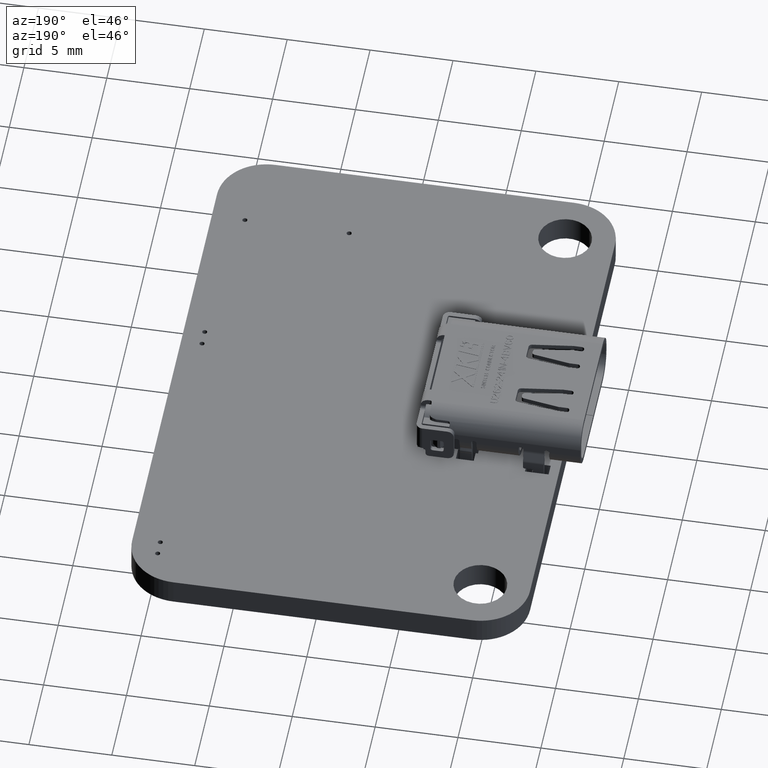
[diagram: clean part render]
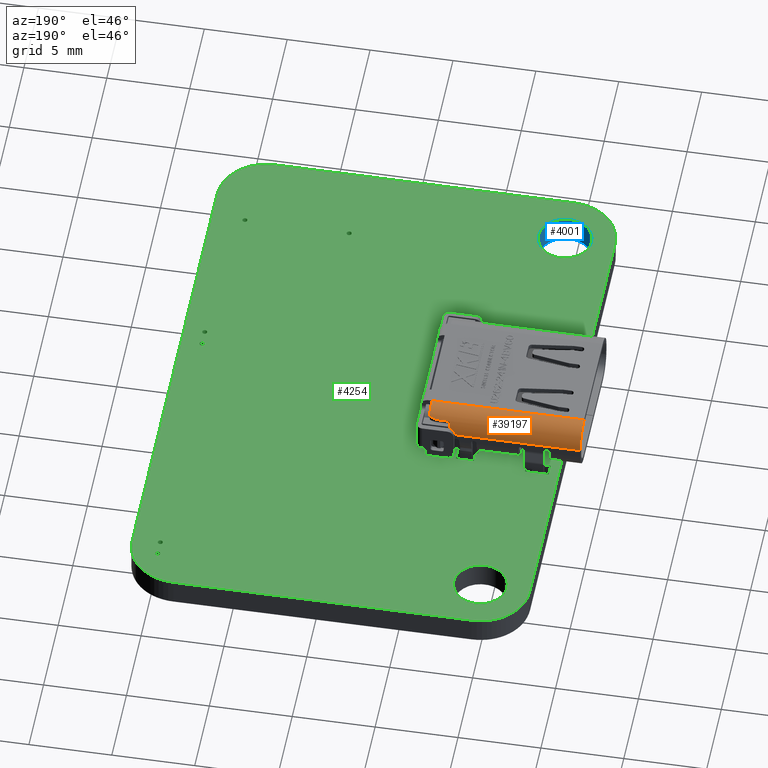
[diagram: same view with three faces highlighted in distinct colors, each labeled with its STEP entity id]
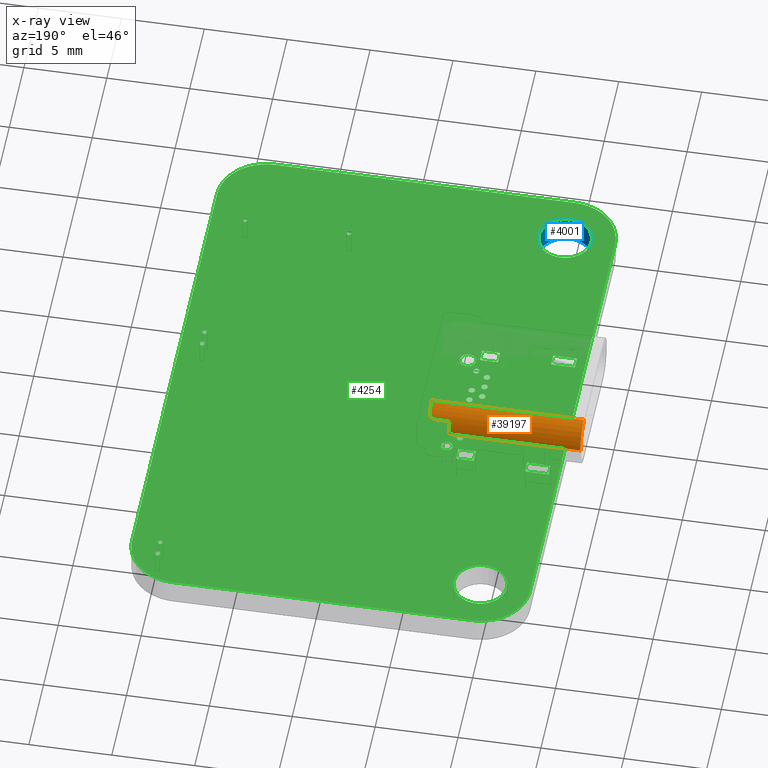
[diagram: x-ray of the same camera — body ghosted, the three highlighted faces saturated]
A machine part, auxiliary view with three faces highlighted in distinct colors.
The next image is the same camera in x-ray (body ghosted, the three faces saturated) — at least one of them is partly hidden behind the body in this view.
Their STEP definitions:

[orange] entity #39197 — the highlighted cylindrical surface (edge-blend (fillet) strip) has radius 1.3 mm, axis along (1, -0, 0).
#35990 = VERTEX_POINT('',#35991);
#35991 = CARTESIAN_POINT('',(-4.470000174,0.279999960187,-1.649999713284
    ));
#35997 = EDGE_CURVE('',#35998,#35990,#36000,.T.);
#35998 = VERTEX_POINT('',#35999);
#35999 = CARTESIAN_POINT('',(-4.470000174,0.279999960544,6.26));
#36000 = LINE('',#36001,#36002);
#36001 = CARTESIAN_POINT('',(-4.470000174,0.279999960544,6.26));
#36002 = VECTOR('',#36003,1.);
#36003 = DIRECTION('',(0.E+000,-4.521665549039E-011,-1.));
#36302 = VERTEX_POINT('',#36303);
#36303 = CARTESIAN_POINT('',(-4.323264403374,0.879984619247,
    -1.649999713761));
#38810 = EDGE_CURVE('',#35998,#38811,#38813,.T.);
#38811 = VERTEX_POINT('',#38812);
#38812 = CARTESIAN_POINT('',(-3.174839038169,1.579990932433,6.26));
#38813 = CIRCLE('',#38814,1.299999978);
#38814 = AXIS2_PLACEMENT_3D('',#38815,#38816,#38817);
#38815 = CARTESIAN_POINT('',(-3.170000196,0.27999996,6.26));
#38816 = DIRECTION('',(0.E+000,0.E+000,-1.));
#38817 = DIRECTION('',(-1.,1.162615707158E-009,0.E+000));
#39197 = ADVANCED_FACE('',(#39198),#39305,.T.);
#39198 = FACE_BOUND('',#39199,.T.);
#39199 = EDGE_LOOP('',(#39200,#39201,#39202,#39210,#39223,#39232,#39245,
    #39256,#39265,#39273,#39291,#39298));
#39200 = ORIENTED_EDGE('',*,*,#35997,.F.);
#39201 = ORIENTED_EDGE('',*,*,#38810,.T.);
#39202 = ORIENTED_EDGE('',*,*,#39203,.F.);
#39203 = EDGE_CURVE('',#39204,#38811,#39206,.T.);
#39204 = VERTEX_POINT('',#39205);
#39205 = CARTESIAN_POINT('',(-3.174994055083,1.579995759134,
    -3.00940348062));
#39206 = LINE('',#39207,#39208);
#39207 = CARTESIAN_POINT('',(-3.174994055083,1.579995759134,
    -3.00940348062));
#39208 = VECTOR('',#39209,1.);
#39209 = DIRECTION('',(6.281786627129E-006,-6.682635573784E-009,
    0.99999999998));
#39210 = ORIENTED_EDGE('',*,*,#39211,.F.);
#39211 = EDGE_CURVE('',#39212,#39204,#39214,.T.);
#39212 = VERTEX_POINT('',#39213);
#39213 = CARTESIAN_POINT('',(-3.300907609936,1.573392086069,
    -2.91000003164));
#39214 = B_SPLINE_CURVE_WITH_KNOTS('',3,(#39215,#39216,#39217,#39218,
    #39219,#39220,#39221,#39222),.UNSPECIFIED.,.F.,.F.,(4,1,1,1,1,4),(
    0.E+000,0.2,0.4,0.6,0.8,1.),.QUASI_UNIFORM_KNOTS.);
#39215 = CARTESIAN_POINT('',(-3.300907615816,1.573392085463,
    -2.910000033879));
#39216 = CARTESIAN_POINT('',(-3.289930381875,1.574503118592,
    -2.910725848789));
#39217 = CARTESIAN_POINT('',(-3.268428693061,1.576406540695,
    -2.912444895567));
#39218 = CARTESIAN_POINT('',(-3.236273870362,1.578425190351,
    -2.925242235423));
#39219 = CARTESIAN_POINT('',(-3.208960510841,1.57950123919,
    -2.946292266327));
#39220 = CARTESIAN_POINT('',(-3.185537846444,1.579948207472,
    -2.975667691055));
#39221 = CARTESIAN_POINT('',(-3.177441296569,1.579986376711,
    -2.997553468333));
#39222 = CARTESIAN_POINT('',(-3.174994055083,1.579995759134,
    -3.00940348062));
#39223 = ORIENTED_EDGE('',*,*,#39224,.T.);
#39224 = EDGE_CURVE('',#39212,#39225,#39227,.T.);
#39225 = VERTEX_POINT('',#39226);
#39226 = CARTESIAN_POINT('',(-3.964496136446,1.308968445135,
    -2.910000033877));
#39227 = CIRCLE('',#39228,1.299999978);
#39228 = AXIS2_PLACEMENT_3D('',#39229,#39230,#39231);
#39229 = CARTESIAN_POINT('',(-3.170000196,0.27999996,-2.91000003164));
#39230 = DIRECTION('',(0.E+000,0.E+000,1.));
#39231 = DIRECTION('',(-0.100698012424,0.99491703689,0.E+000));
#39232 = ORIENTED_EDGE('',*,*,#39233,.F.);
#39233 = EDGE_CURVE('',#39234,#39225,#39236,.T.);
#39234 = VERTEX_POINT('',#39235);
#39235 = CARTESIAN_POINT('',(-4.138316785844,1.147388531501,
    -2.747780408655));
#39236 = B_SPLINE_CURVE_WITH_KNOTS('',3,(#39237,#39238,#39239,#39240,
    #39241,#39242,#39243,#39244),.UNSPECIFIED.,.F.,.F.,(4,1,1,1,1,4),(
    0.E+000,0.2,0.4,0.6,0.8,1.),.QUASI_UNIFORM_KNOTS.);
#39237 = CARTESIAN_POINT('',(-4.138316785844,1.147388531501,
    -2.747780408655));
#39238 = CARTESIAN_POINT('',(-4.132300366375,1.154105012401,
    -2.769690643974));
#39239 = CARTESIAN_POINT('',(-4.118198604014,1.169542062447,
    -2.80887006961));
#39240 = CARTESIAN_POINT('',(-4.091998556932,1.196841449796,
    -2.848999681096));
#39241 = CARTESIAN_POINT('',(-4.055570417733,1.232188153174,
    -2.884638946836));
#39242 = CARTESIAN_POINT('',(-4.016134920028,1.267504802891,
    -2.902738049749));
#39243 = CARTESIAN_POINT('',(-3.982726380281,1.29489235322,
    -2.908886520523));
#39244 = CARTESIAN_POINT('',(-3.964496136446,1.308968445135,
    -2.910000033877));
#39245 = ORIENTED_EDGE('',*,*,#39246,.F.);
#39246 = EDGE_CURVE('',#39247,#39234,#39249,.T.);
#39247 = VERTEX_POINT('',#39248);
#39248 = CARTESIAN_POINT('',(-4.185730255973,1.091352157302,
    -2.552446633238));
#39249 = B_SPLINE_CURVE_WITH_KNOTS('',3,(#39250,#39251,#39252,#39253,
    #39254,#39255),.UNSPECIFIED.,.F.,.F.,(4,1,1,4),(0.E+000,
    0.333333333333,0.666666666667,1.),.UNSPECIFIED.);
#39250 = CARTESIAN_POINT('',(-4.185730093493,1.091352157996,
    -2.552448120154));
#39251 = CARTESIAN_POINT('',(-4.180642841523,1.097720869636,
    -2.574151719937));
#39252 = CARTESIAN_POINT('',(-4.170335143581,1.110379353562,
    -2.617556879594));
#39253 = CARTESIAN_POINT('',(-4.154529776873,1.129058680377,
    -2.682668887627));
#39254 = CARTESIAN_POINT('',(-4.143765632786,1.141305665005,
    -2.726080188379));
#39255 = CARTESIAN_POINT('',(-4.138316785844,1.147388531501,
    -2.747780408655));
#39256 = ORIENTED_EDGE('',*,*,#39257,.F.);
#39257 = EDGE_CURVE('',#39258,#39247,#39260,.T.);
#39258 = VERTEX_POINT('',#39259);
#39259 = CARTESIAN_POINT('',(-4.195602740992,1.0788362151,
    -2.464665755241));
#39260 = B_SPLINE_CURVE_WITH_KNOTS('',3,(#39261,#39262,#39263,#39264),
  .UNSPECIFIED.,.F.,.F.,(4,4),(0.E+000,1.),.PIECEWISE_BEZIER_KNOTS.);
#39261 = CARTESIAN_POINT('',(-4.195602740945,1.078836215188,
    -2.464665755492));
#39262 = CARTESIAN_POINT('',(-4.192312735529,1.083060157085,
    -2.493918731209));
#39263 = CARTESIAN_POINT('',(-4.189021894914,1.087231361636,
    -2.523179133085));
#39264 = CARTESIAN_POINT('',(-4.185730255973,1.091352157302,
    -2.552446633238));
#39265 = ORIENTED_EDGE('',*,*,#39266,.F.);
#39266 = EDGE_CURVE('',#39267,#39258,#39269,.T.);
#39267 = VERTEX_POINT('',#39268);
#39268 = CARTESIAN_POINT('',(-4.19560274099,1.078836215036,
    -1.779999308876));
#39269 = LINE('',#39270,#39271);
#39270 = CARTESIAN_POINT('',(-4.19560274099,1.078836215036,
    -1.779999308876));
#39271 = VECTOR('',#39272,1.);
#39272 = DIRECTION('',(-2.328550306248E-012,9.339205574381E-011,-1.));
#39273 = ORIENTED_EDGE('',*,*,#39274,.F.);
#39274 = EDGE_CURVE('',#39275,#39267,#39277,.T.);
#39275 = VERTEX_POINT('',#39276);
#39276 = CARTESIAN_POINT('',(-4.270466174964,0.972079848412,
    -1.649999710598));
#39277 = B_SPLINE_CURVE_WITH_KNOTS('',3,(#39278,#39279,#39280,#39281,
    #39282,#39283,#39284,#39285,#39286,#39287,#39288,#39289,#39290),
  .UNSPECIFIED.,.F.,.F.,(4,1,1,1,1,1,1,1,1,1,4),(0.E+000,0.1,0.2,0.3,0.4
    ,0.5,0.6,0.7,0.8,0.9,1.),.QUASI_UNIFORM_KNOTS.);
#39278 = CARTESIAN_POINT('',(-4.270466180811,0.97207983913,
    -1.649999713527));
#39279 = CARTESIAN_POINT('',(-4.266510094142,0.978370354292,
    -1.650482781806));
#39280 = CARTESIAN_POINT('',(-4.258752122109,0.990464703726,
    -1.651422904264));
#39281 = CARTESIAN_POINT('',(-4.247869618476,1.006854396364,
    -1.655950647735));
#39282 = CARTESIAN_POINT('',(-4.23739814883,1.022139439979,
    -1.663863127908));
#39283 = CARTESIAN_POINT('',(-4.227101896761,1.036729959723,
    -1.67493476294));
#39284 = CARTESIAN_POINT('',(-4.217128678146,1.050455419844,
    -1.689848866392));
#39285 = CARTESIAN_POINT('',(-4.209072574401,1.061263548608,
    -1.7064150745));
#39286 = CARTESIAN_POINT('',(-4.203038602115,1.069211000635,
    -1.723441929514));
#39287 = CARTESIAN_POINT('',(-4.198992114814,1.07447032913,
    -1.74111273544));
#39288 = CARTESIAN_POINT('',(-4.196846824513,1.077237537055,
    -1.759763338035));
#39289 = CARTESIAN_POINT('',(-4.196019496986,1.078301154181,
    -1.773133376148));
#39290 = CARTESIAN_POINT('',(-4.19560274099,1.078836215036,
    -1.779999308876));
#39291 = ORIENTED_EDGE('',*,*,#39292,.T.);
#39292 = EDGE_CURVE('',#39275,#36302,#39293,.T.);
#39293 = CIRCLE('',#39294,1.299999978);
#39294 = AXIS2_PLACEMENT_3D('',#39295,#39296,#39297);
#39295 = CARTESIAN_POINT('',(-3.170000196,0.27999996,-1.649999710598));
#39296 = DIRECTION('',(0.E+000,0.E+000,1.));
#39297 = DIRECTION('',(-0.846512305836,0.532369153941,0.E+000));
#39298 = ORIENTED_EDGE('',*,*,#39299,.T.);
#39299 = EDGE_CURVE('',#36302,#35990,#39300,.T.);
#39300 = CIRCLE('',#39301,1.299999978);
#39301 = AXIS2_PLACEMENT_3D('',#39302,#39303,#39304);
#39302 = CARTESIAN_POINT('',(-3.170000196,0.27999996,-1.649999710598));
#39303 = DIRECTION('',(0.E+000,0.E+000,1.));
#39304 = DIRECTION('',(-0.887126438948,0.461526468709,0.E+000));
#39305 = CYLINDRICAL_SURFACE('',#39306,1.299999978);
#39306 = AXIS2_PLACEMENT_3D('',#39307,#39308,#39309);
#39307 = CARTESIAN_POINT('',(-3.170000196,0.27999996,6.26));
#39308 = DIRECTION('',(0.E+000,0.E+000,-1.));
#39309 = DIRECTION('',(-1.,0.E+000,0.E+000));

[blue] entity #4001 — the highlighted cylindrical surface (edge-blend (fillet) strip) has radius 1.6 mm, axis along (-0, -0, -1).
#4001 = ADVANCED_FACE('',(#4002),#4037,.F.);
#4002 = FACE_BOUND('',#4003,.F.);
#4003 = EDGE_LOOP('',(#4004,#4015,#4023,#4032));
#4004 = ORIENTED_EDGE('',*,*,#4005,.T.);
#4005 = EDGE_CURVE('',#4006,#4008,#4010,.T.);
#4006 = VERTEX_POINT('',#4007);
#4007 = CARTESIAN_POINT('',(-6.1,-14.5,-0.82));
#4008 = VERTEX_POINT('',#4009);
#4009 = CARTESIAN_POINT('',(-2.9,-14.5,-0.82));
#4010 = CIRCLE('',#4011,1.6);
#4011 = AXIS2_PLACEMENT_3D('',#4012,#4013,#4014);
#4012 = CARTESIAN_POINT('',(-4.5,-14.5,-0.82));
#4013 = DIRECTION('',(0.E+000,0.E+000,1.));
#4014 = DIRECTION('',(1.,0.E+000,-0.E+000));
#4015 = ORIENTED_EDGE('',*,*,#4016,.T.);
#4016 = EDGE_CURVE('',#4008,#4017,#4019,.T.);
#4017 = VERTEX_POINT('',#4018);
#4018 = CARTESIAN_POINT('',(-2.9,-14.5,0.82));
#4019 = LINE('',#4020,#4021);
#4020 = CARTESIAN_POINT('',(-2.9,-14.5,-0.82));
#4021 = VECTOR('',#4022,1.);
#4022 = DIRECTION('',(0.E+000,0.E+000,1.));
#4023 = ORIENTED_EDGE('',*,*,#4024,.F.);
#4024 = EDGE_CURVE('',#4025,#4017,#4027,.T.);
#4025 = VERTEX_POINT('',#4026);
#4026 = CARTESIAN_POINT('',(-6.1,-14.5,0.82));
#4027 = CIRCLE('',#4028,1.6);
#4028 = AXIS2_PLACEMENT_3D('',#4029,#4030,#4031);
#4029 = CARTESIAN_POINT('',(-4.5,-14.5,0.82));
#4030 = DIRECTION('',(0.E+000,0.E+000,1.));
#4031 = DIRECTION('',(1.,0.E+000,-0.E+000));
#4032 = ORIENTED_EDGE('',*,*,#4033,.T.);
#4033 = EDGE_CURVE('',#4025,#4006,#4034,.T.);
#4034 = B_SPLINE_CURVE_WITH_KNOTS('',1,(#4035,#4036),.UNSPECIFIED.,.F.,
  .F.,(2,2),(-1.64,0.E+000),.PIECEWISE_BEZIER_KNOTS.);
#4035 = CARTESIAN_POINT('',(-6.1,-14.5,0.82));
#4036 = CARTESIAN_POINT('',(-6.1,-14.5,-0.82));
#4037 = CYLINDRICAL_SURFACE('',#4038,1.6);
#4038 = AXIS2_PLACEMENT_3D('',#4039,#4040,#4041);
#4039 = CARTESIAN_POINT('',(-4.5,-14.5,-0.82));
#4040 = DIRECTION('',(-0.E+000,-0.E+000,-1.));
#4041 = DIRECTION('',(1.,0.E+000,-0.E+000));

[green] entity #4254 — the highlighted planar face has unit normal (0, 0, -1).
#39 = VERTEX_POINT('',#40);
#40 = CARTESIAN_POINT('',(13.5,17.5,0.82));
#46 = EDGE_CURVE('',#39,#47,#49,.T.);
#47 = VERTEX_POINT('',#48);
#48 = CARTESIAN_POINT('',(-4.5,17.5,0.82));
#49 = LINE('',#50,#51);
#50 = CARTESIAN_POINT('',(13.5,17.5,0.82));
#51 = VECTOR('',#52,1.);
#52 = DIRECTION('',(-1.,0.E+000,0.E+000));
#79 = VERTEX_POINT('',#80);
#80 = CARTESIAN_POINT('',(13.81178,17.48485,0.82));
#86 = EDGE_CURVE('',#79,#39,#87,.T.);
#87 = LINE('',#88,#89);
#88 = CARTESIAN_POINT('',(13.81178,17.48485,0.82));
#89 = VECTOR('',#90,1.);
#90 = DIRECTION('',(-0.998821497493,4.853469012451E-002,0.E+000));
#108 = EDGE_CURVE('',#47,#109,#111,.T.);
#109 = VERTEX_POINT('',#110);
#110 = CARTESIAN_POINT('',(-4.81178,17.48485,0.82));
#111 = LINE('',#112,#113);
#112 = CARTESIAN_POINT('',(-4.5,17.5,0.82));
#113 = VECTOR('',#114,1.);
#114 = DIRECTION('',(-0.998821497493,-4.853469012451E-002,0.E+000));
#141 = VERTEX_POINT('',#142);
#142 = CARTESIAN_POINT('',(14.1134,17.44031,0.82));
#148 = EDGE_CURVE('',#141,#79,#149,.T.);
#149 = LINE('',#150,#151);
#150 = CARTESIAN_POINT('',(14.1134,17.44031,0.82));
#151 = VECTOR('',#152,1.);
#152 = DIRECTION('',(-0.98927203272,0.146085061791,0.E+000));
#170 = EDGE_CURVE('',#109,#171,#173,.T.);
#171 = VERTEX_POINT('',#172);
#172 = CARTESIAN_POINT('',(-5.1134,17.44031,0.82));
#173 = LINE('',#174,#175);
#174 = CARTESIAN_POINT('',(-4.81178,17.48485,0.82));
#175 = VECTOR('',#176,1.);
#176 = DIRECTION('',(-0.98927203272,-0.146085061791,0.E+000));
#203 = VERTEX_POINT('',#204);
#204 = CARTESIAN_POINT('',(14.40349,17.36775,0.82));
#210 = EDGE_CURVE('',#203,#141,#211,.T.);
#211 = LINE('',#212,#213);
#212 = CARTESIAN_POINT('',(14.40349,17.36775,0.82));
#213 = VECTOR('',#214,1.);
#214 = DIRECTION('',(-0.970112985501,0.242653653101,0.E+000));
#232 = EDGE_CURVE('',#171,#233,#235,.T.);
#233 = VERTEX_POINT('',#234);
#234 = CARTESIAN_POINT('',(-5.40349,17.36775,0.82));
#235 = LINE('',#236,#237);
#236 = CARTESIAN_POINT('',(-5.1134,17.44031,0.82));
#237 = VECTOR('',#238,1.);
#238 = DIRECTION('',(-0.970112985501,-0.242653653101,0.E+000));
#265 = VERTEX_POINT('',#266);
#266 = CARTESIAN_POINT('',(14.68066,17.26855,0.82));
#272 = EDGE_CURVE('',#265,#203,#273,.T.);
#273 = LINE('',#274,#275);
#274 = CARTESIAN_POINT('',(14.68066,17.26855,0.82));
#275 = VECTOR('',#276,1.);
#276 = DIRECTION('',(-0.941514982379,0.336971123325,0.E+000));
#294 = EDGE_CURVE('',#233,#295,#297,.T.);
#295 = VERTEX_POINT('',#296);
#296 = CARTESIAN_POINT('',(-5.68066,17.26855,0.82));
#297 = LINE('',#298,#299);
#298 = CARTESIAN_POINT('',(-5.40349,17.36775,0.82));
#299 = VECTOR('',#300,1.);
#300 = DIRECTION('',(-0.941514982379,-0.336971123325,0.E+000));
#327 = VERTEX_POINT('',#328);
#328 = CARTESIAN_POINT('',(14.94356,17.14409,0.82));
#334 = EDGE_CURVE('',#327,#265,#335,.T.);
#335 = LINE('',#336,#337);
#336 = CARTESIAN_POINT('',(14.94356,17.14409,0.82));
#337 = VECTOR('',#338,1.);
#338 = DIRECTION('',(-0.903833020889,0.427885347203,0.E+000));
#356 = EDGE_CURVE('',#295,#357,#359,.T.);
#357 = VERTEX_POINT('',#358);
#358 = CARTESIAN_POINT('',(-5.94356,17.14409,0.82));
#359 = LINE('',#360,#361);
#360 = CARTESIAN_POINT('',(-5.68066,17.26855,0.82));
#361 = VECTOR('',#362,1.);
#362 = DIRECTION('',(-0.903833020889,-0.427885347203,0.E+000));
#389 = VERTEX_POINT('',#390);
#390 = CARTESIAN_POINT('',(15.19079,16.99573,0.82));
#396 = EDGE_CURVE('',#389,#327,#397,.T.);
#397 = LINE('',#398,#399);
#398 = CARTESIAN_POINT('',(15.19079,16.99573,0.82));
#399 = VECTOR('',#400,1.);
#400 = DIRECTION('',(-0.857459261301,0.51455185862,0.E+000));
#418 = EDGE_CURVE('',#357,#419,#421,.T.);
#419 = VERTEX_POINT('',#420);
#420 = CARTESIAN_POINT('',(-6.19079,16.99573,0.82));
#421 = LINE('',#422,#423);
#422 = CARTESIAN_POINT('',(-5.94356,17.14409,0.82));
#423 = VECTOR('',#424,1.);
#424 = DIRECTION('',(-0.857459261301,-0.51455185862,0.E+000));
#451 = VERTEX_POINT('',#452);
#452 = CARTESIAN_POINT('',(15.421,16.82484,0.82));
#458 = EDGE_CURVE('',#451,#389,#459,.T.);
#459 = LINE('',#460,#461);
#460 = CARTESIAN_POINT('',(15.421,16.82484,0.82));
#461 = VECTOR('',#462,1.);
#462 = DIRECTION('',(-0.802949404684,0.59604719068,0.E+000));
#480 = EDGE_CURVE('',#419,#481,#483,.T.);
#481 = VERTEX_POINT('',#482);
#482 = CARTESIAN_POINT('',(-6.421,16.82484,0.82));
#483 = LINE('',#484,#485);
#484 = CARTESIAN_POINT('',(-6.19079,16.99573,0.82));
#485 = VECTOR('',#486,1.);
#486 = DIRECTION('',(-0.802949404684,-0.59604719068,0.E+000));
#513 = VERTEX_POINT('',#514);
#514 = CARTESIAN_POINT('',(15.63281,16.63281,0.82));
#520 = EDGE_CURVE('',#513,#451,#521,.T.);
#521 = LINE('',#522,#523);
#522 = CARTESIAN_POINT('',(15.63281,16.63281,0.82));
#523 = VECTOR('',#524,1.);
#524 = DIRECTION('',(-0.740852597809,0.671667647218,0.E+000));
#542 = EDGE_CURVE('',#481,#543,#545,.T.);
#543 = VERTEX_POINT('',#544);
#544 = CARTESIAN_POINT('',(-6.63281,16.63281,0.82));
#545 = LINE('',#546,#547);
#546 = CARTESIAN_POINT('',(-6.421,16.82484,0.82));
#547 = VECTOR('',#548,1.);
#548 = DIRECTION('',(-0.740852597809,-0.671667647218,0.E+000));
#575 = VERTEX_POINT('',#576);
#576 = CARTESIAN_POINT('',(15.82484,16.42101,0.82));
#582 = EDGE_CURVE('',#575,#513,#583,.T.);
#583 = LINE('',#584,#585);
#584 = CARTESIAN_POINT('',(15.82484,16.42101,0.82));
#585 = VECTOR('',#586,1.);
#586 = DIRECTION('',(-0.671685052386,0.74083681766,0.E+000));
#604 = EDGE_CURVE('',#543,#605,#607,.T.);
#605 = VERTEX_POINT('',#606);
#606 = CARTESIAN_POINT('',(-6.82484,16.42101,0.82));
#607 = LINE('',#608,#609);
#608 = CARTESIAN_POINT('',(-6.63281,16.63281,0.82));
#609 = VECTOR('',#610,1.);
#610 = DIRECTION('',(-0.671685052386,-0.74083681766,0.E+000));
#637 = VERTEX_POINT('',#638);
#638 = CARTESIAN_POINT('',(15.99573,16.1908,0.82));
#644 = EDGE_CURVE('',#637,#575,#645,.T.);
#645 = LINE('',#646,#647);
#646 = CARTESIAN_POINT('',(15.99573,16.1908,0.82));
#647 = VECTOR('',#648,1.);
#648 = DIRECTION('',(-0.59604719068,0.802949404684,0.E+000));
#666 = EDGE_CURVE('',#605,#667,#669,.T.);
#667 = VERTEX_POINT('',#668);
#668 = CARTESIAN_POINT('',(-6.99573,16.1908,0.82));
#669 = LINE('',#670,#671);
#670 = CARTESIAN_POINT('',(-6.82484,16.42101,0.82));
#671 = VECTOR('',#672,1.);
#672 = DIRECTION('',(-0.59604719068,-0.802949404684,0.E+000));
#699 = VERTEX_POINT('',#700);
#700 = CARTESIAN_POINT('',(16.14409,15.94356,0.82));
#706 = EDGE_CURVE('',#699,#637,#707,.T.);
#707 = LINE('',#708,#709);
#708 = CARTESIAN_POINT('',(16.14409,15.94356,0.82));
#709 = VECTOR('',#710,1.);
#710 = DIRECTION('',(-0.514536556754,0.857468443596,0.E+000));
#728 = EDGE_CURVE('',#667,#729,#731,.T.);
#729 = VERTEX_POINT('',#730);
#730 = CARTESIAN_POINT('',(-7.14409,15.94356,0.82));
#731 = LINE('',#732,#733);
#732 = CARTESIAN_POINT('',(-6.99573,16.1908,0.82));
#733 = VECTOR('',#734,1.);
#734 = DIRECTION('',(-0.514536556754,-0.857468443596,0.E+000));
#761 = VERTEX_POINT('',#762);
#762 = CARTESIAN_POINT('',(16.26855,15.68066,0.82));
#768 = EDGE_CURVE('',#761,#699,#769,.T.);
#769 = LINE('',#770,#771);
#770 = CARTESIAN_POINT('',(16.26855,15.68066,0.82));
#771 = VECTOR('',#772,1.);
#772 = DIRECTION('',(-0.427885347203,0.903833020889,0.E+000));
#790 = EDGE_CURVE('',#729,#791,#793,.T.);
#791 = VERTEX_POINT('',#792);
#792 = CARTESIAN_POINT('',(-7.26855,15.68066,0.82));
#793 = LINE('',#794,#795);
#794 = CARTESIAN_POINT('',(-7.14409,15.94356,0.82));
#795 = VECTOR('',#796,1.);
#796 = DIRECTION('',(-0.427885347203,-0.903833020889,0.E+000));
#823 = VERTEX_POINT('',#824);
#824 = CARTESIAN_POINT('',(16.36775,15.40349,0.82));
#830 = EDGE_CURVE('',#823,#761,#831,.T.);
#831 = LINE('',#832,#833);
#832 = CARTESIAN_POINT('',(16.36775,15.40349,0.82));
#833 = VECTOR('',#834,1.);
#834 = DIRECTION('',(-0.336971123325,0.941514982379,0.E+000));
#852 = EDGE_CURVE('',#791,#853,#855,.T.);
#853 = VERTEX_POINT('',#854);
#854 = CARTESIAN_POINT('',(-7.36775,15.40349,0.82));
#855 = LINE('',#856,#857);
#856 = CARTESIAN_POINT('',(-7.26855,15.68066,0.82));
#857 = VECTOR('',#858,1.);
#858 = DIRECTION('',(-0.336971123325,-0.941514982379,0.E+000));
#885 = VERTEX_POINT('',#886);
#886 = CARTESIAN_POINT('',(16.44031,15.1134,0.82));
#892 = EDGE_CURVE('',#885,#823,#893,.T.);
#893 = LINE('',#894,#895);
#894 = CARTESIAN_POINT('',(16.44031,15.1134,0.82));
#895 = VECTOR('',#896,1.);
#896 = DIRECTION('',(-0.242653653101,0.970112985501,0.E+000));
#914 = EDGE_CURVE('',#853,#915,#917,.T.);
#915 = VERTEX_POINT('',#916);
#916 = CARTESIAN_POINT('',(-7.44031,15.1134,0.82));
#917 = LINE('',#918,#919);
#918 = CARTESIAN_POINT('',(-7.36775,15.40349,0.82));
#919 = VECTOR('',#920,1.);
#920 = DIRECTION('',(-0.242653653101,-0.970112985501,0.E+000));
#947 = VERTEX_POINT('',#948);
#948 = CARTESIAN_POINT('',(16.48485,14.81178,0.82));
#954 = EDGE_CURVE('',#947,#885,#955,.T.);
#955 = LINE('',#956,#957);
#956 = CARTESIAN_POINT('',(16.48485,14.81178,0.82));
#957 = VECTOR('',#958,1.);
#958 = DIRECTION('',(-0.146085061791,0.98927203272,0.E+000));
#976 = EDGE_CURVE('',#915,#977,#979,.T.);
#977 = VERTEX_POINT('',#978);
#978 = CARTESIAN_POINT('',(-7.48485,14.81178,0.82));
#979 = LINE('',#980,#981);
#980 = CARTESIAN_POINT('',(-7.44031,15.1134,0.82));
#981 = VECTOR('',#982,1.);
#982 = DIRECTION('',(-0.146085061791,-0.98927203272,0.E+000));
#1009 = VERTEX_POINT('',#1010);
#1010 = CARTESIAN_POINT('',(16.5,14.5,0.82));
#1016 = EDGE_CURVE('',#1009,#947,#1017,.T.);
#1017 = LINE('',#1018,#1019);
#1018 = CARTESIAN_POINT('',(16.5,14.5,0.82));
#1019 = VECTOR('',#1020,1.);
#1020 = DIRECTION('',(-4.853469012451E-002,0.998821497493,0.E+000));
#1038 = EDGE_CURVE('',#977,#1039,#1041,.T.);
#1039 = VERTEX_POINT('',#1040);
#1040 = CARTESIAN_POINT('',(-7.5,14.5,0.82));
#1041 = LINE('',#1042,#1043);
#1042 = CARTESIAN_POINT('',(-7.48485,14.81178,0.82));
#1043 = VECTOR('',#1044,1.);
#1044 = DIRECTION('',(-4.853469012452E-002,-0.998821497493,0.E+000));
#1071 = VERTEX_POINT('',#1072);
#1072 = CARTESIAN_POINT('',(16.5,-14.5,0.82));
#1078 = EDGE_CURVE('',#1071,#1009,#1079,.T.);
#1079 = LINE('',#1080,#1081);
#1080 = CARTESIAN_POINT('',(16.5,-14.5,0.82));
#1081 = VECTOR('',#1082,1.);
#1082 = DIRECTION('',(0.E+000,1.,0.E+000));
#1100 = EDGE_CURVE('',#1039,#1101,#1103,.T.);
#1101 = VERTEX_POINT('',#1102);
#1102 = CARTESIAN_POINT('',(-7.5,-14.5,0.82));
#1103 = LINE('',#1104,#1105);
#1104 = CARTESIAN_POINT('',(-7.5,14.5,0.82));
#1105 = VECTOR('',#1106,1.);
#1106 = DIRECTION('',(0.E+000,-1.,0.E+000));
#1133 = VERTEX_POINT('',#1134);
#1134 = CARTESIAN_POINT('',(16.48485,-14.81178,0.82));
#1140 = EDGE_CURVE('',#1133,#1071,#1141,.T.);
#1141 = LINE('',#1142,#1143);
#1142 = CARTESIAN_POINT('',(16.48485,-14.81178,0.82));
#1143 = VECTOR('',#1144,1.);
#1144 = DIRECTION('',(4.853469012451E-002,0.998821497493,0.E+000));
#1162 = EDGE_CURVE('',#1101,#1163,#1165,.T.);
#1163 = VERTEX_POINT('',#1164);
#1164 = CARTESIAN_POINT('',(-7.48485,-14.81178,0.82));
#1165 = LINE('',#1166,#1167);
#1166 = CARTESIAN_POINT('',(-7.5,-14.5,0.82));
#1167 = VECTOR('',#1168,1.);
#1168 = DIRECTION('',(4.853469012452E-002,-0.998821497493,0.E+000));
#1195 = VERTEX_POINT('',#1196);
#1196 = CARTESIAN_POINT('',(16.44031,-15.1134,0.82));
#1202 = EDGE_CURVE('',#1195,#1133,#1203,.T.);
#1203 = LINE('',#1204,#1205);
#1204 = CARTESIAN_POINT('',(16.44031,-15.1134,0.82));
#1205 = VECTOR('',#1206,1.);
#1206 = DIRECTION('',(0.146085061791,0.98927203272,0.E+000));
#1224 = EDGE_CURVE('',#1163,#1225,#1227,.T.);
#1225 = VERTEX_POINT('',#1226);
#1226 = CARTESIAN_POINT('',(-7.44031,-15.1134,0.82));
#1227 = LINE('',#1228,#1229);
#1228 = CARTESIAN_POINT('',(-7.48485,-14.81178,0.82));
#1229 = VECTOR('',#1230,1.);
#1230 = DIRECTION('',(0.146085061791,-0.98927203272,0.E+000));
#1257 = VERTEX_POINT('',#1258);
#1258 = CARTESIAN_POINT('',(16.36775,-15.40349,0.82));
#1264 = EDGE_CURVE('',#1257,#1195,#1265,.T.);
#1265 = LINE('',#1266,#1267);
#1266 = CARTESIAN_POINT('',(16.36775,-15.40349,0.82));
#1267 = VECTOR('',#1268,1.);
#1268 = DIRECTION('',(0.242653653101,0.970112985501,0.E+000));
#1286 = EDGE_CURVE('',#1225,#1287,#1289,.T.);
#1287 = VERTEX_POINT('',#1288);
#1288 = CARTESIAN_POINT('',(-7.36775,-15.40349,0.82));
#1289 = LINE('',#1290,#1291);
#1290 = CARTESIAN_POINT('',(-7.44031,-15.1134,0.82));
#1291 = VECTOR('',#1292,1.);
#1292 = DIRECTION('',(0.242653653101,-0.970112985501,0.E+000));
#1319 = VERTEX_POINT('',#1320);
#1320 = CARTESIAN_POINT('',(16.26855,-15.68066,0.82));
#1326 = EDGE_CURVE('',#1319,#1257,#1327,.T.);
#1327 = LINE('',#1328,#1329);
#1328 = CARTESIAN_POINT('',(16.26855,-15.68066,0.82));
#1329 = VECTOR('',#1330,1.);
#1330 = DIRECTION('',(0.336971123325,0.941514982379,0.E+000));
#1348 = EDGE_CURVE('',#1287,#1349,#1351,.T.);
#1349 = VERTEX_POINT('',#1350);
#1350 = CARTESIAN_POINT('',(-7.26855,-15.68066,0.82));
#1351 = LINE('',#1352,#1353);
#1352 = CARTESIAN_POINT('',(-7.36775,-15.40349,0.82));
#1353 = VECTOR('',#1354,1.);
#1354 = DIRECTION('',(0.336971123325,-0.941514982379,0.E+000));
#1381 = VERTEX_POINT('',#1382);
#1382 = CARTESIAN_POINT('',(16.14409,-15.94356,0.82));
#1388 = EDGE_CURVE('',#1381,#1319,#1389,.T.);
#1389 = LINE('',#1390,#1391);
#1390 = CARTESIAN_POINT('',(16.14409,-15.94356,0.82));
#1391 = VECTOR('',#1392,1.);
#1392 = DIRECTION('',(0.427885347203,0.903833020889,0.E+000));
#1410 = EDGE_CURVE('',#1349,#1411,#1413,.T.);
#1411 = VERTEX_POINT('',#1412);
#1412 = CARTESIAN_POINT('',(-7.14409,-15.94356,0.82));
#1413 = LINE('',#1414,#1415);
#1414 = CARTESIAN_POINT('',(-7.26855,-15.68066,0.82));
#1415 = VECTOR('',#1416,1.);
#1416 = DIRECTION('',(0.427885347203,-0.903833020889,0.E+000));
#1443 = VERTEX_POINT('',#1444);
#1444 = CARTESIAN_POINT('',(15.99573,-16.1908,0.82));
#1450 = EDGE_CURVE('',#1443,#1381,#1451,.T.);
#1451 = LINE('',#1452,#1453);
#1452 = CARTESIAN_POINT('',(15.99573,-16.1908,0.82));
#1453 = VECTOR('',#1454,1.);
#1454 = DIRECTION('',(0.514536556754,0.857468443596,0.E+000));
#1472 = EDGE_CURVE('',#1411,#1473,#1475,.T.);
#1473 = VERTEX_POINT('',#1474);
#1474 = CARTESIAN_POINT('',(-6.99573,-16.1908,0.82));
#1475 = LINE('',#1476,#1477);
#1476 = CARTESIAN_POINT('',(-7.14409,-15.94356,0.82));
#1477 = VECTOR('',#1478,1.);
#1478 = DIRECTION('',(0.514536556754,-0.857468443596,0.E+000));
#1505 = VERTEX_POINT('',#1506);
#1506 = CARTESIAN_POINT('',(15.82484,-16.42101,0.82));
#1512 = EDGE_CURVE('',#1505,#1443,#1513,.T.);
#1513 = LINE('',#1514,#1515);
#1514 = CARTESIAN_POINT('',(15.82484,-16.42101,0.82));
#1515 = VECTOR('',#1516,1.);
#1516 = DIRECTION('',(0.59604719068,0.802949404684,0.E+000));
#1534 = EDGE_CURVE('',#1473,#1535,#1537,.T.);
#1535 = VERTEX_POINT('',#1536);
#1536 = CARTESIAN_POINT('',(-6.82484,-16.42101,0.82));
#1537 = LINE('',#1538,#1539);
#1538 = CARTESIAN_POINT('',(-6.99573,-16.1908,0.82));
#1539 = VECTOR('',#1540,1.);
#1540 = DIRECTION('',(0.59604719068,-0.802949404684,0.E+000));
#1567 = VERTEX_POINT('',#1568);
#1568 = CARTESIAN_POINT('',(15.63281,-16.63281,0.82));
#1574 = EDGE_CURVE('',#1567,#1505,#1575,.T.);
#1575 = LINE('',#1576,#1577);
#1576 = CARTESIAN_POINT('',(15.63281,-16.63281,0.82));
#1577 = VECTOR('',#1578,1.);
#1578 = DIRECTION('',(0.671685052386,0.74083681766,0.E+000));
#1596 = EDGE_CURVE('',#1535,#1597,#1599,.T.);
#1597 = VERTEX_POINT('',#1598);
#1598 = CARTESIAN_POINT('',(-6.63281,-16.63281,0.82));
#1599 = LINE('',#1600,#1601);
#1600 = CARTESIAN_POINT('',(-6.82484,-16.42101,0.82));
#1601 = VECTOR('',#1602,1.);
#1602 = DIRECTION('',(0.671685052386,-0.74083681766,0.E+000));
#1629 = VERTEX_POINT('',#1630);
#1630 = CARTESIAN_POINT('',(15.421,-16.82484,0.82));
#1636 = EDGE_CURVE('',#1629,#1567,#1637,.T.);
#1637 = LINE('',#1638,#1639);
#1638 = CARTESIAN_POINT('',(15.421,-16.82484,0.82));
#1639 = VECTOR('',#1640,1.);
#1640 = DIRECTION('',(0.740852597809,0.671667647218,0.E+000));
#1658 = EDGE_CURVE('',#1597,#1659,#1661,.T.);
#1659 = VERTEX_POINT('',#1660);
#1660 = CARTESIAN_POINT('',(-6.421,-16.82484,0.82));
#1661 = LINE('',#1662,#1663);
#1662 = CARTESIAN_POINT('',(-6.63281,-16.63281,0.82));
#1663 = VECTOR('',#1664,1.);
#1664 = DIRECTION('',(0.740852597809,-0.671667647218,0.E+000));
#1691 = VERTEX_POINT('',#1692);
#1692 = CARTESIAN_POINT('',(15.19079,-16.99573,0.82));
#1698 = EDGE_CURVE('',#1691,#1629,#1699,.T.);
#1699 = LINE('',#1700,#1701);
#1700 = CARTESIAN_POINT('',(15.19079,-16.99573,0.82));
#1701 = VECTOR('',#1702,1.);
#1702 = DIRECTION('',(0.802949404684,0.59604719068,0.E+000));
#1720 = EDGE_CURVE('',#1659,#1721,#1723,.T.);
#1721 = VERTEX_POINT('',#1722);
#1722 = CARTESIAN_POINT('',(-6.19079,-16.99573,0.82));
#1723 = LINE('',#1724,#1725);
#1724 = CARTESIAN_POINT('',(-6.421,-16.82484,0.82));
#1725 = VECTOR('',#1726,1.);
#1726 = DIRECTION('',(0.802949404684,-0.59604719068,0.E+000));
#1753 = VERTEX_POINT('',#1754);
#1754 = CARTESIAN_POINT('',(14.94356,-17.14409,0.82));
#1760 = EDGE_CURVE('',#1753,#1691,#1761,.T.);
#1761 = LINE('',#1762,#1763);
#1762 = CARTESIAN_POINT('',(14.94356,-17.14409,0.82));
#1763 = VECTOR('',#1764,1.);
#1764 = DIRECTION('',(0.857459261301,0.51455185862,0.E+000));
#1782 = EDGE_CURVE('',#1721,#1783,#1785,.T.);
#1783 = VERTEX_POINT('',#1784);
#1784 = CARTESIAN_POINT('',(-5.94356,-17.14409,0.82));
#1785 = LINE('',#1786,#1787);
#1786 = CARTESIAN_POINT('',(-6.19079,-16.99573,0.82));
#1787 = VECTOR('',#1788,1.);
#1788 = DIRECTION('',(0.857459261301,-0.51455185862,0.E+000));
#1815 = VERTEX_POINT('',#1816);
#1816 = CARTESIAN_POINT('',(14.68066,-17.26855,0.82));
#1822 = EDGE_CURVE('',#1815,#1753,#1823,.T.);
#1823 = LINE('',#1824,#1825);
#1824 = CARTESIAN_POINT('',(14.68066,-17.26855,0.82));
#1825 = VECTOR('',#1826,1.);
#1826 = DIRECTION('',(0.903833020889,0.427885347203,0.E+000));
#1844 = EDGE_CURVE('',#1783,#1845,#1847,.T.);
#1845 = VERTEX_POINT('',#1846);
#1846 = CARTESIAN_POINT('',(-5.68066,-17.26855,0.82));
#1847 = LINE('',#1848,#1849);
#1848 = CARTESIAN_POINT('',(-5.94356,-17.14409,0.82));
#1849 = VECTOR('',#1850,1.);
#1850 = DIRECTION('',(0.903833020889,-0.427885347203,0.E+000));
#1877 = VERTEX_POINT('',#1878);
#1878 = CARTESIAN_POINT('',(14.40349,-17.36775,0.82));
#1884 = EDGE_CURVE('',#1877,#1815,#1885,.T.);
#1885 = LINE('',#1886,#1887);
#1886 = CARTESIAN_POINT('',(14.40349,-17.36775,0.82));
#1887 = VECTOR('',#1888,1.);
#1888 = DIRECTION('',(0.941514982379,0.336971123325,0.E+000));
#1906 = EDGE_CURVE('',#1845,#1907,#1909,.T.);
#1907 = VERTEX_POINT('',#1908);
#1908 = CARTESIAN_POINT('',(-5.40349,-17.36775,0.82));
#1909 = LINE('',#1910,#1911);
#1910 = CARTESIAN_POINT('',(-5.68066,-17.26855,0.82));
#1911 = VECTOR('',#1912,1.);
#1912 = DIRECTION('',(0.941514982379,-0.336971123325,0.E+000));
#1939 = VERTEX_POINT('',#1940);
#1940 = CARTESIAN_POINT('',(14.1134,-17.44031,0.82));
#1946 = EDGE_CURVE('',#1939,#1877,#1947,.T.);
#1947 = LINE('',#1948,#1949);
#1948 = CARTESIAN_POINT('',(14.1134,-17.44031,0.82));
#1949 = VECTOR('',#1950,1.);
#1950 = DIRECTION('',(0.970112985501,0.242653653101,0.E+000));
#1968 = EDGE_CURVE('',#1907,#1969,#1971,.T.);
#1969 = VERTEX_POINT('',#1970);
#1970 = CARTESIAN_POINT('',(-5.1134,-17.44031,0.82));
#1971 = LINE('',#1972,#1973);
#1972 = CARTESIAN_POINT('',(-5.40349,-17.36775,0.82));
#1973 = VECTOR('',#1974,1.);
#1974 = DIRECTION('',(0.970112985501,-0.242653653101,0.E+000));
#2001 = VERTEX_POINT('',#2002);
#2002 = CARTESIAN_POINT('',(13.81178,-17.48485,0.82));
#2008 = EDGE_CURVE('',#2001,#1939,#2009,.T.);
#2009 = LINE('',#2010,#2011);
#2010 = CARTESIAN_POINT('',(13.81178,-17.48485,0.82));
#2011 = VECTOR('',#2012,1.);
#2012 = DIRECTION('',(0.98927203272,0.146085061791,0.E+000));
#2030 = EDGE_CURVE('',#1969,#2031,#2033,.T.);
#2031 = VERTEX_POINT('',#2032);
#2032 = CARTESIAN_POINT('',(-4.81178,-17.48485,0.82));
#2033 = LINE('',#2034,#2035);
#2034 = CARTESIAN_POINT('',(-5.1134,-17.44031,0.82));
#2035 = VECTOR('',#2036,1.);
#2036 = DIRECTION('',(0.98927203272,-0.146085061791,0.E+000));
#2063 = VERTEX_POINT('',#2064);
#2064 = CARTESIAN_POINT('',(13.5,-17.5,0.82));
#2070 = EDGE_CURVE('',#2063,#2001,#2071,.T.);
#2071 = LINE('',#2072,#2073);
#2072 = CARTESIAN_POINT('',(13.5,-17.5,0.82));
#2073 = VECTOR('',#2074,1.);
#2074 = DIRECTION('',(0.998821497493,4.853469012451E-002,0.E+000));
#2092 = EDGE_CURVE('',#2031,#2093,#2095,.T.);
#2093 = VERTEX_POINT('',#2094);
#2094 = CARTESIAN_POINT('',(-4.5,-17.5,0.82));
#2095 = LINE('',#2096,#2097);
#2096 = CARTESIAN_POINT('',(-4.81178,-17.48485,0.82));
#2097 = VECTOR('',#2098,1.);
#2098 = DIRECTION('',(0.998821497493,-4.853469012451E-002,0.E+000));
#2123 = EDGE_CURVE('',#2093,#2063,#2124,.T.);
#2124 = LINE('',#2125,#2126);
#2125 = CARTESIAN_POINT('',(-4.5,-17.5,0.82));
#2126 = VECTOR('',#2127,1.);
#2127 = DIRECTION('',(1.,0.E+000,0.E+000));
#2156 = VERTEX_POINT('',#2157);
#2157 = CARTESIAN_POINT('',(14.97924,14.37076,0.82));
#2163 = EDGE_CURVE('',#2164,#2156,#2166,.T.);
#2164 = VERTEX_POINT('',#2165);
#2165 = CARTESIAN_POINT('',(14.67924,14.37076,0.82));
#2166 = CIRCLE('',#2167,0.15);
#2167 = AXIS2_PLACEMENT_3D('',#2168,#2169,#2170);
#2168 = CARTESIAN_POINT('',(14.82924,14.37076,0.82));
#2169 = DIRECTION('',(0.E+000,0.E+000,1.));
#2170 = DIRECTION('',(1.,0.E+000,-0.E+000));
#2185 = EDGE_CURVE('',#2156,#2164,#2186,.T.);
#2186 = CIRCLE('',#2187,0.15);
#2187 = AXIS2_PLACEMENT_3D('',#2188,#2189,#2190);
#2188 = CARTESIAN_POINT('',(14.82924,14.37076,0.82));
#2189 = DIRECTION('',(0.E+000,0.E+000,1.));
#2190 = DIRECTION('',(1.,0.E+000,-0.E+000));
#2221 = VERTEX_POINT('',#2222);
#2222 = CARTESIAN_POINT('',(-1.71944,1.6,0.82));
#2228 = EDGE_CURVE('',#2229,#2221,#2231,.T.);
#2229 = VERTEX_POINT('',#2230);
#2230 = CARTESIAN_POINT('',(-2.10044,1.6,0.82));
#2231 = CIRCLE('',#2232,0.1905);
#2232 = AXIS2_PLACEMENT_3D('',#2233,#2234,#2235);
#2233 = CARTESIAN_POINT('',(-1.90994,1.6,0.82));
#2234 = DIRECTION('',(0.E+000,0.E+000,1.));
#2235 = DIRECTION('',(1.,0.E+000,-0.E+000));
#2250 = EDGE_CURVE('',#2221,#2229,#2251,.T.);
#2251 = CIRCLE('',#2252,0.1905);
#2252 = AXIS2_PLACEMENT_3D('',#2253,#2254,#2255);
#2253 = CARTESIAN_POINT('',(-1.90994,1.6,0.82));
#2254 = DIRECTION('',(0.E+000,0.E+000,1.));
#2255 = DIRECTION('',(1.,0.E+000,-0.E+000));
#2286 = VERTEX_POINT('',#2287);
#2287 = CARTESIAN_POINT('',(-1.71944,2.4,0.82));
#2293 = EDGE_CURVE('',#2294,#2286,#2296,.T.);
#2294 = VERTEX_POINT('',#2295);
#2295 = CARTESIAN_POINT('',(-2.10044,2.4,0.82));
#2296 = CIRCLE('',#2297,0.1905);
#2297 = AXIS2_PLACEMENT_3D('',#2298,#2299,#2300);
#2298 = CARTESIAN_POINT('',(-1.90994,2.4,0.82));
#2299 = DIRECTION('',(0.E+000,0.E+000,1.));
#2300 = DIRECTION('',(1.,0.E+000,-0.E+000));
#2315 = EDGE_CURVE('',#2286,#2294,#2316,.T.);
#2316 = CIRCLE('',#2317,0.1905);
#2317 = AXIS2_PLACEMENT_3D('',#2318,#2319,#2320);
#2318 = CARTESIAN_POINT('',(-1.90994,2.4,0.82));
#2319 = DIRECTION('',(0.E+000,0.E+000,1.));
#2320 = DIRECTION('',(1.,0.E+000,-0.E+000));
#2351 = VERTEX_POINT('',#2352);
#2352 = CARTESIAN_POINT('',(-1.0195,2.8,0.82));
#2358 = EDGE_CURVE('',#2359,#2351,#2361,.T.);
#2359 = VERTEX_POINT('',#2360);
#2360 = CARTESIAN_POINT('',(-1.4005,2.8,0.82));
#2361 = CIRCLE('',#2362,0.1905);
#2362 = AXIS2_PLACEMENT_3D('',#2363,#2364,#2365);
#2363 = CARTESIAN_POINT('',(-1.21,2.8,0.82));
#2364 = DIRECTION('',(0.E+000,0.E+000,1.));
#2365 = DIRECTION('',(1.,0.E+000,-0.E+000));
#2380 = EDGE_CURVE('',#2351,#2359,#2381,.T.);
#2381 = CIRCLE('',#2382,0.1905);
#2382 = AXIS2_PLACEMENT_3D('',#2383,#2384,#2385);
#2383 = CARTESIAN_POINT('',(-1.21,2.8,0.82));
#2384 = DIRECTION('',(0.E+000,0.E+000,1.));
#2385 = DIRECTION('',(1.,0.E+000,-0.E+000));
#2416 = VERTEX_POINT('',#2417);
#2417 = CARTESIAN_POINT('',(-0.225,3.6,0.82));
#2423 = EDGE_CURVE('',#2424,#2416,#2426,.T.);
#2424 = VERTEX_POINT('',#2425);
#2425 = CARTESIAN_POINT('',(-0.895,3.6,0.82));
#2426 = CIRCLE('',#2427,0.335);
#2427 = AXIS2_PLACEMENT_3D('',#2428,#2429,#2430);
#2428 = CARTESIAN_POINT('',(-0.56,3.6,0.82));
#2429 = DIRECTION('',(0.E+000,0.E+000,1.));
#2430 = DIRECTION('',(1.,0.E+000,-0.E+000));
#2445 = EDGE_CURVE('',#2416,#2424,#2446,.T.);
#2446 = CIRCLE('',#2447,0.335);
#2447 = AXIS2_PLACEMENT_3D('',#2448,#2449,#2450);
#2448 = CARTESIAN_POINT('',(-0.56,3.6,0.82));
#2449 = DIRECTION('',(0.E+000,0.E+000,1.));
#2450 = DIRECTION('',(1.,0.E+000,-0.E+000));
#2472 = VERTEX_POINT('',#2473);
#2473 = CARTESIAN_POINT('',(-1.2615,3.7415,0.82));
#2479 = EDGE_CURVE('',#2472,#2480,#2482,.T.);
#2480 = VERTEX_POINT('',#2481);
#2481 = CARTESIAN_POINT('',(-2.3385,3.7415,0.82));
#2482 = LINE('',#2483,#2484);
#2483 = CARTESIAN_POINT('',(-1.2615,3.7415,0.82));
#2484 = VECTOR('',#2485,1.);
#2485 = DIRECTION('',(-1.,0.E+000,0.E+000));
#2510 = EDGE_CURVE('',#2480,#2511,#2513,.T.);
#2511 = VERTEX_POINT('',#2512);
#2512 = CARTESIAN_POINT('',(-2.3385,4.5185,0.82));
#2513 = LINE('',#2514,#2515);
#2514 = CARTESIAN_POINT('',(-2.3385,3.7415,0.82));
#2515 = VECTOR('',#2516,1.);
#2516 = DIRECTION('',(0.E+000,1.,0.E+000));
#2541 = EDGE_CURVE('',#2511,#2542,#2544,.T.);
#2542 = VERTEX_POINT('',#2543);
#2543 = CARTESIAN_POINT('',(-1.2615,4.5185,0.82));
#2544 = LINE('',#2545,#2546);
#2545 = CARTESIAN_POINT('',(-2.3385,4.5185,0.82));
#2546 = VECTOR('',#2547,1.);
#2547 = DIRECTION('',(1.,0.E+000,0.E+000));
#2572 = EDGE_CURVE('',#2542,#2472,#2573,.T.);
#2573 = LINE('',#2574,#2575);
#2574 = CARTESIAN_POINT('',(-1.2615,4.5185,0.82));
#2575 = VECTOR('',#2576,1.);
#2576 = DIRECTION('',(0.E+000,-1.,0.E+000));
#2605 = VERTEX_POINT('',#2606);
#2606 = CARTESIAN_POINT('',(15.39686,-3.1855,0.82));
#2612 = EDGE_CURVE('',#2613,#2605,#2615,.T.);
#2613 = VERTEX_POINT('',#2614);
#2614 = CARTESIAN_POINT('',(15.09686,-3.1855,0.82));
#2615 = CIRCLE('',#2616,0.15);
#2616 = AXIS2_PLACEMENT_3D('',#2617,#2618,#2619);
#2617 = CARTESIAN_POINT('',(15.24686,-3.1855,0.82));
#2618 = DIRECTION('',(0.E+000,0.E+000,1.));
#2619 = DIRECTION('',(1.,0.E+000,-0.E+000));
#2634 = EDGE_CURVE('',#2605,#2613,#2635,.T.);
#2635 = CIRCLE('',#2636,0.15);
#2636 = AXIS2_PLACEMENT_3D('',#2637,#2638,#2639);
#2637 = CARTESIAN_POINT('',(15.24686,-3.1855,0.82));
#2638 = DIRECTION('',(0.E+000,0.E+000,1.));
#2639 = DIRECTION('',(1.,0.E+000,-0.E+000));
#2670 = VERTEX_POINT('',#2671);
#2671 = CARTESIAN_POINT('',(15.38957,-2.2083,0.82));
#2677 = EDGE_CURVE('',#2678,#2670,#2680,.T.);
#2678 = VERTEX_POINT('',#2679);
#2679 = CARTESIAN_POINT('',(15.08957,-2.2083,0.82));
#2680 = CIRCLE('',#2681,0.15);
#2681 = AXIS2_PLACEMENT_3D('',#2682,#2683,#2684);
#2682 = CARTESIAN_POINT('',(15.23957,-2.2083,0.82));
#2683 = DIRECTION('',(0.E+000,0.E+000,1.));
#2684 = DIRECTION('',(1.,0.E+000,-0.E+000));
#2699 = EDGE_CURVE('',#2670,#2678,#2700,.T.);
#2700 = CIRCLE('',#2701,0.15);
#2701 = AXIS2_PLACEMENT_3D('',#2702,#2703,#2704);
#2702 = CARTESIAN_POINT('',(15.23957,-2.2083,0.82));
#2703 = DIRECTION('',(0.E+000,0.E+000,1.));
#2704 = DIRECTION('',(1.,0.E+000,-0.E+000));
#2735 = VERTEX_POINT('',#2736);
#2736 = CARTESIAN_POINT('',(-1.0195,-1.2,0.82));
#2742 = EDGE_CURVE('',#2743,#2735,#2745,.T.);
#2743 = VERTEX_POINT('',#2744);
#2744 = CARTESIAN_POINT('',(-1.4005,-1.2,0.82));
#2745 = CIRCLE('',#2746,0.1905);
#2746 = AXIS2_PLACEMENT_3D('',#2747,#2748,#2749);
#2747 = CARTESIAN_POINT('',(-1.21,-1.2,0.82));
#2748 = DIRECTION('',(0.E+000,0.E+000,1.));
#2749 = DIRECTION('',(1.,0.E+000,-0.E+000));
#2764 = EDGE_CURVE('',#2735,#2743,#2765,.T.);
#2765 = CIRCLE('',#2766,0.1905);
#2766 = AXIS2_PLACEMENT_3D('',#2767,#2768,#2769);
#2767 = CARTESIAN_POINT('',(-1.21,-1.2,0.82));
#2768 = DIRECTION('',(0.E+000,0.E+000,1.));
#2769 = DIRECTION('',(1.,0.E+000,-0.E+000));
#2800 = VERTEX_POINT('',#2801);
#2801 = CARTESIAN_POINT('',(-1.0195,-2.8,0.82));
#2807 = EDGE_CURVE('',#2808,#2800,#2810,.T.);
#2808 = VERTEX_POINT('',#2809);
#2809 = CARTESIAN_POINT('',(-1.4005,-2.8,0.82));
#2810 = CIRCLE('',#2811,0.1905);
#2811 = AXIS2_PLACEMENT_3D('',#2812,#2813,#2814);
#2812 = CARTESIAN_POINT('',(-1.21,-2.8,0.82));
#2813 = DIRECTION('',(0.E+000,0.E+000,1.));
#2814 = DIRECTION('',(1.,0.E+000,-0.E+000));
#2829 = EDGE_CURVE('',#2800,#2808,#2830,.T.);
#2830 = CIRCLE('',#2831,0.1905);
#2831 = AXIS2_PLACEMENT_3D('',#2832,#2833,#2834);
#2832 = CARTESIAN_POINT('',(-1.21,-2.8,0.82));
#2833 = DIRECTION('',(0.E+000,0.E+000,1.));
#2834 = DIRECTION('',(1.,0.E+000,-0.E+000));
#2865 = VERTEX_POINT('',#2866);
#2866 = CARTESIAN_POINT('',(-1.71944,-1.6,0.82));
#2872 = EDGE_CURVE('',#2873,#2865,#2875,.T.);
#2873 = VERTEX_POINT('',#2874);
#2874 = CARTESIAN_POINT('',(-2.10044,-1.6,0.82));
#2875 = CIRCLE('',#2876,0.1905);
#2876 = AXIS2_PLACEMENT_3D('',#2877,#2878,#2879);
#2877 = CARTESIAN_POINT('',(-1.90994,-1.6,0.82));
#2878 = DIRECTION('',(0.E+000,0.E+000,1.));
#2879 = DIRECTION('',(1.,0.E+000,-0.E+000));
#2894 = EDGE_CURVE('',#2865,#2873,#2895,.T.);
#2895 = CIRCLE('',#2896,0.1905);
#2896 = AXIS2_PLACEMENT_3D('',#2897,#2898,#2899);
#2897 = CARTESIAN_POINT('',(-1.90994,-1.6,0.82));
#2898 = DIRECTION('',(0.E+000,0.E+000,1.));
#2899 = DIRECTION('',(1.,0.E+000,-0.E+000));
#2930 = VERTEX_POINT('',#2931);
#2931 = CARTESIAN_POINT('',(-1.71944,-2.4,0.82));
#2937 = EDGE_CURVE('',#2938,#2930,#2940,.T.);
#2938 = VERTEX_POINT('',#2939);
#2939 = CARTESIAN_POINT('',(-2.10044,-2.4,0.82));
#2940 = CIRCLE('',#2941,0.1905);
#2941 = AXIS2_PLACEMENT_3D('',#2942,#2943,#2944);
#2942 = CARTESIAN_POINT('',(-1.90994,-2.4,0.82));
#2943 = DIRECTION('',(0.E+000,0.E+000,1.));
#2944 = DIRECTION('',(1.,0.E+000,-0.E+000));
#2959 = EDGE_CURVE('',#2930,#2938,#2960,.T.);
#2960 = CIRCLE('',#2961,0.1905);
#2961 = AXIS2_PLACEMENT_3D('',#2962,#2963,#2964);
#2962 = CARTESIAN_POINT('',(-1.90994,-2.4,0.82));
#2963 = DIRECTION('',(0.E+000,0.E+000,1.));
#2964 = DIRECTION('',(1.,0.E+000,-0.E+000));
#2995 = VERTEX_POINT('',#2996);
#2996 = CARTESIAN_POINT('',(-7.5E-002,-3.6,0.82));
#3002 = EDGE_CURVE('',#3003,#2995,#3005,.T.);
#3003 = VERTEX_POINT('',#3004);
#3004 = CARTESIAN_POINT('',(-1.045,-3.6,0.82));
#3005 = CIRCLE('',#3006,0.485);
#3006 = AXIS2_PLACEMENT_3D('',#3007,#3008,#3009);
#3007 = CARTESIAN_POINT('',(-0.56,-3.6,0.82));
#3008 = DIRECTION('',(0.E+000,0.E+000,1.));
#3009 = DIRECTION('',(1.,0.E+000,-0.E+000));
#3024 = EDGE_CURVE('',#2995,#3003,#3025,.T.);
#3025 = CIRCLE('',#3026,0.485);
#3026 = AXIS2_PLACEMENT_3D('',#3027,#3028,#3029);
#3027 = CARTESIAN_POINT('',(-0.56,-3.6,0.82));
#3028 = DIRECTION('',(0.E+000,0.E+000,1.));
#3029 = DIRECTION('',(1.,0.E+000,-0.E+000));
#3051 = VERTEX_POINT('',#3052);
#3052 = CARTESIAN_POINT('',(-1.2615,-3.74154,0.82));
#3058 = EDGE_CURVE('',#3051,#3059,#3061,.T.);
#3059 = VERTEX_POINT('',#3060);
#3060 = CARTESIAN_POINT('',(-1.2615,-4.51854,0.82));
#3061 = LINE('',#3062,#3063);
#3062 = CARTESIAN_POINT('',(-1.2615,-3.74154,0.82));
#3063 = VECTOR('',#3064,1.);
#3064 = DIRECTION('',(0.E+000,-1.,0.E+000));
#3089 = EDGE_CURVE('',#3059,#3090,#3092,.T.);
#3090 = VERTEX_POINT('',#3091);
#3091 = CARTESIAN_POINT('',(-2.3385,-4.51854,0.82));
#3092 = LINE('',#3093,#3094);
#3093 = CARTESIAN_POINT('',(-1.2615,-4.51854,0.82));
#3094 = VECTOR('',#3095,1.);
#3095 = DIRECTION('',(-1.,0.E+000,0.E+000));
#3120 = EDGE_CURVE('',#3090,#3121,#3123,.T.);
#3121 = VERTEX_POINT('',#3122);
#3122 = CARTESIAN_POINT('',(-2.3385,-3.74154,0.82));
#3123 = LINE('',#3124,#3125);
#3124 = CARTESIAN_POINT('',(-2.3385,-4.51854,0.82));
#3125 = VECTOR('',#3126,1.);
#3126 = DIRECTION('',(0.E+000,1.,0.E+000));
#3151 = EDGE_CURVE('',#3121,#3051,#3152,.T.);
#3152 = LINE('',#3153,#3154);
#3153 = CARTESIAN_POINT('',(-2.3385,-3.74154,0.82));
#3154 = VECTOR('',#3155,1.);
#3155 = DIRECTION('',(1.,0.E+000,0.E+000));
#3184 = VERTEX_POINT('',#3185);
#3185 = CARTESIAN_POINT('',(-1.71944,0.8001,0.82));
#3191 = EDGE_CURVE('',#3192,#3184,#3194,.T.);
#3192 = VERTEX_POINT('',#3193);
#3193 = CARTESIAN_POINT('',(-2.10044,0.8001,0.82));
#3194 = CIRCLE('',#3195,0.1905);
#3195 = AXIS2_PLACEMENT_3D('',#3196,#3197,#3198);
#3196 = CARTESIAN_POINT('',(-1.90994,0.8001,0.82));
#3197 = DIRECTION('',(0.E+000,0.E+000,1.));
#3198 = DIRECTION('',(1.,0.E+000,-0.E+000));
#3213 = EDGE_CURVE('',#3184,#3192,#3214,.T.);
#3214 = CIRCLE('',#3215,0.1905);
#3215 = AXIS2_PLACEMENT_3D('',#3216,#3217,#3218);
#3216 = CARTESIAN_POINT('',(-1.90994,0.8001,0.82));
#3217 = DIRECTION('',(0.E+000,0.E+000,1.));
#3218 = DIRECTION('',(1.,0.E+000,-0.E+000));
#3249 = VERTEX_POINT('',#3250);
#3250 = CARTESIAN_POINT('',(-1.71944,-0.8001,0.82));
#3256 = EDGE_CURVE('',#3257,#3249,#3259,.T.);
#3257 = VERTEX_POINT('',#3258);
#3258 = CARTESIAN_POINT('',(-2.10044,-0.8001,0.82));
#3259 = CIRCLE('',#3260,0.1905);
#3260 = AXIS2_PLACEMENT_3D('',#3261,#3262,#3263);
#3261 = CARTESIAN_POINT('',(-1.90994,-0.8001,0.82));
#3262 = DIRECTION('',(0.E+000,0.E+000,1.));
#3263 = DIRECTION('',(1.,0.E+000,-0.E+000));
#3278 = EDGE_CURVE('',#3249,#3257,#3279,.T.);
#3279 = CIRCLE('',#3280,0.1905);
#3280 = AXIS2_PLACEMENT_3D('',#3281,#3282,#3283);
#3281 = CARTESIAN_POINT('',(-1.90994,-0.8001,0.82));
#3282 = DIRECTION('',(0.E+000,0.E+000,1.));
#3283 = DIRECTION('',(1.,0.E+000,-0.E+000));
#3314 = VERTEX_POINT('',#3315);
#3315 = CARTESIAN_POINT('',(-1.0195,-0.4,0.82));
#3321 = EDGE_CURVE('',#3322,#3314,#3324,.T.);
#3322 = VERTEX_POINT('',#3323);
#3323 = CARTESIAN_POINT('',(-1.4005,-0.4,0.82));
#3324 = CIRCLE('',#3325,0.1905);
#3325 = AXIS2_PLACEMENT_3D('',#3326,#3327,#3328);
#3326 = CARTESIAN_POINT('',(-1.21,-0.4,0.82));
#3327 = DIRECTION('',(0.E+000,0.E+000,1.));
#3328 = DIRECTION('',(1.,0.E+000,-0.E+000));
#3343 = EDGE_CURVE('',#3314,#3322,#3344,.T.);
#3344 = CIRCLE('',#3345,0.1905);
#3345 = AXIS2_PLACEMENT_3D('',#3346,#3347,#3348);
#3346 = CARTESIAN_POINT('',(-1.21,-0.4,0.82));
#3347 = DIRECTION('',(0.E+000,0.E+000,1.));
#3348 = DIRECTION('',(1.,0.E+000,-0.E+000));
#3379 = VERTEX_POINT('',#3380);
#3380 = CARTESIAN_POINT('',(-1.0195,0.4,0.82));
#3386 = EDGE_CURVE('',#3387,#3379,#3389,.T.);
#3387 = VERTEX_POINT('',#3388);
#3388 = CARTESIAN_POINT('',(-1.4005,0.4,0.82));
#3389 = CIRCLE('',#3390,0.1905);
#3390 = AXIS2_PLACEMENT_3D('',#3391,#3392,#3393);
#3391 = CARTESIAN_POINT('',(-1.21,0.4,0.82));
#3392 = DIRECTION('',(0.E+000,0.E+000,1.));
#3393 = DIRECTION('',(1.,0.E+000,-0.E+000));
#3408 = EDGE_CURVE('',#3379,#3387,#3409,.T.);
#3409 = CIRCLE('',#3410,0.1905);
#3410 = AXIS2_PLACEMENT_3D('',#3411,#3412,#3413);
#3411 = CARTESIAN_POINT('',(-1.21,0.4,0.82));
#3412 = DIRECTION('',(0.E+000,0.E+000,1.));
#3413 = DIRECTION('',(1.,0.E+000,-0.E+000));
#3444 = VERTEX_POINT('',#3445);
#3445 = CARTESIAN_POINT('',(-1.0195,1.2,0.82));
#3451 = EDGE_CURVE('',#3452,#3444,#3454,.T.);
#3452 = VERTEX_POINT('',#3453);
#3453 = CARTESIAN_POINT('',(-1.4005,1.2,0.82));
#3454 = CIRCLE('',#3455,0.1905);
#3455 = AXIS2_PLACEMENT_3D('',#3456,#3457,#3458);
#3456 = CARTESIAN_POINT('',(-1.21,1.2,0.82));
#3457 = DIRECTION('',(0.E+000,0.E+000,1.));
#3458 = DIRECTION('',(1.,0.E+000,-0.E+000));
#3473 = EDGE_CURVE('',#3444,#3452,#3474,.T.);
#3474 = CIRCLE('',#3475,0.1905);
#3475 = AXIS2_PLACEMENT_3D('',#3476,#3477,#3478);
#3476 = CARTESIAN_POINT('',(-1.21,1.2,0.82));
#3477 = DIRECTION('',(0.E+000,0.E+000,1.));
#3478 = DIRECTION('',(1.,0.E+000,-0.E+000));
#3509 = VERTEX_POINT('',#3510);
#3510 = CARTESIAN_POINT('',(8.36538,-12.7,0.82));
#3516 = EDGE_CURVE('',#3517,#3509,#3519,.T.);
#3517 = VERTEX_POINT('',#3518);
#3518 = CARTESIAN_POINT('',(8.06538,-12.7,0.82));
#3519 = CIRCLE('',#3520,0.15);
#3520 = AXIS2_PLACEMENT_3D('',#3521,#3522,#3523);
#3521 = CARTESIAN_POINT('',(8.21538,-12.7,0.82));
#3522 = DIRECTION('',(0.E+000,0.E+000,1.));
#3523 = DIRECTION('',(1.,0.E+000,-0.E+000));
#3538 = EDGE_CURVE('',#3509,#3517,#3539,.T.);
#3539 = CIRCLE('',#3540,0.15);
#3540 = AXIS2_PLACEMENT_3D('',#3541,#3542,#3543);
#3541 = CARTESIAN_POINT('',(8.21538,-12.7,0.82));
#3542 = DIRECTION('',(0.E+000,0.E+000,1.));
#3543 = DIRECTION('',(1.,0.E+000,-0.E+000));
#3574 = VERTEX_POINT('',#3575);
#3575 = CARTESIAN_POINT('',(14.65,-12.7,0.82));
#3581 = EDGE_CURVE('',#3582,#3574,#3584,.T.);
#3582 = VERTEX_POINT('',#3583);
#3583 = CARTESIAN_POINT('',(14.35,-12.7,0.82));
#3584 = CIRCLE('',#3585,0.15);
#3585 = AXIS2_PLACEMENT_3D('',#3586,#3587,#3588);
#3586 = CARTESIAN_POINT('',(14.5,-12.7,0.82));
#3587 = DIRECTION('',(0.E+000,0.E+000,1.));
#3588 = DIRECTION('',(1.,0.E+000,-0.E+000));
#3603 = EDGE_CURVE('',#3574,#3582,#3604,.T.);
#3604 = CIRCLE('',#3605,0.15);
#3605 = AXIS2_PLACEMENT_3D('',#3606,#3607,#3608);
#3606 = CARTESIAN_POINT('',(14.5,-12.7,0.82));
#3607 = DIRECTION('',(0.E+000,0.E+000,1.));
#3608 = DIRECTION('',(1.,0.E+000,-0.E+000));
#3639 = VERTEX_POINT('',#3640);
#3640 = CARTESIAN_POINT('',(14.97437,15.31149,0.82));
#3646 = EDGE_CURVE('',#3647,#3639,#3649,.T.);
#3647 = VERTEX_POINT('',#3648);
#3648 = CARTESIAN_POINT('',(14.67437,15.31149,0.82));
#3649 = CIRCLE('',#3650,0.15);
#3650 = AXIS2_PLACEMENT_3D('',#3651,#3652,#3653);
#3651 = CARTESIAN_POINT('',(14.82437,15.31149,0.82));
#3652 = DIRECTION('',(0.E+000,0.E+000,1.));
#3653 = DIRECTION('',(1.,0.E+000,-0.E+000));
#3668 = EDGE_CURVE('',#3639,#3647,#3669,.T.);
#3669 = CIRCLE('',#3670,0.15);
#3670 = AXIS2_PLACEMENT_3D('',#3671,#3672,#3673);
#3671 = CARTESIAN_POINT('',(14.82437,15.31149,0.82));
#3672 = DIRECTION('',(0.E+000,0.E+000,1.));
#3673 = DIRECTION('',(1.,0.E+000,-0.E+000));
#3704 = VERTEX_POINT('',#3705);
#3705 = CARTESIAN_POINT('',(-2.9,14.5,0.82));
#3711 = EDGE_CURVE('',#3712,#3704,#3714,.T.);
#3712 = VERTEX_POINT('',#3713);
#3713 = CARTESIAN_POINT('',(-6.1,14.5,0.82));
#3714 = CIRCLE('',#3715,1.6);
#3715 = AXIS2_PLACEMENT_3D('',#3716,#3717,#3718);
#3716 = CARTESIAN_POINT('',(-4.5,14.5,0.82));
#3717 = DIRECTION('',(0.E+000,0.E+000,1.));
#3718 = DIRECTION('',(1.,0.E+000,-0.E+000));
#3733 = EDGE_CURVE('',#3704,#3712,#3734,.T.);
#3734 = CIRCLE('',#3735,1.6);
#3735 = AXIS2_PLACEMENT_3D('',#3736,#3737,#3738);
#3736 = CARTESIAN_POINT('',(-4.5,14.5,0.82));
#3737 = DIRECTION('',(0.E+000,0.E+000,1.));
#3738 = DIRECTION('',(1.,0.E+000,-0.E+000));
#3760 = VERTEX_POINT('',#3761);
#3761 = CARTESIAN_POINT('',(-5.4865,4.8535,0.82));
#3767 = EDGE_CURVE('',#3760,#3768,#3770,.T.);
#3768 = VERTEX_POINT('',#3769);
#3769 = CARTESIAN_POINT('',(-5.4865,4.1265,0.82));
#3770 = LINE('',#3771,#3772);
#3771 = CARTESIAN_POINT('',(-5.4865,4.8535,0.82));
#3772 = VECTOR('',#3773,1.);
#3773 = DIRECTION('',(0.E+000,-1.,0.E+000));
#3798 = EDGE_CURVE('',#3768,#3799,#3801,.T.);
#3799 = VERTEX_POINT('',#3800);
#3800 = CARTESIAN_POINT('',(-6.9135,4.1265,0.82));
#3801 = LINE('',#3802,#3803);
#3802 = CARTESIAN_POINT('',(-5.4865,4.1265,0.82));
#3803 = VECTOR('',#3804,1.);
#3804 = DIRECTION('',(-1.,0.E+000,0.E+000));
#3829 = EDGE_CURVE('',#3799,#3830,#3832,.T.);
#3830 = VERTEX_POINT('',#3831);
#3831 = CARTESIAN_POINT('',(-6.9135,4.8535,0.82));
#3832 = LINE('',#3833,#3834);
#3833 = CARTESIAN_POINT('',(-6.9135,4.1265,0.82));
#3834 = VECTOR('',#3835,1.);
#3835 = DIRECTION('',(0.E+000,1.,0.E+000));
#3860 = EDGE_CURVE('',#3830,#3760,#3861,.T.);
#3861 = LINE('',#3862,#3863);
#3862 = CARTESIAN_POINT('',(-6.9135,4.8535,0.82));
#3863 = VECTOR('',#3864,1.);
#3864 = DIRECTION('',(1.,0.E+000,0.E+000));
#3884 = VERTEX_POINT('',#3885);
#3885 = CARTESIAN_POINT('',(-6.9135,-4.1265,0.82));
#3891 = EDGE_CURVE('',#3884,#3892,#3894,.T.);
#3892 = VERTEX_POINT('',#3893);
#3893 = CARTESIAN_POINT('',(-5.4865,-4.1265,0.82));
#3894 = LINE('',#3895,#3896);
#3895 = CARTESIAN_POINT('',(-6.9135,-4.1265,0.82));
#3896 = VECTOR('',#3897,1.);
#3897 = DIRECTION('',(1.,0.E+000,0.E+000));
#3922 = EDGE_CURVE('',#3892,#3923,#3925,.T.);
#3923 = VERTEX_POINT('',#3924);
#3924 = CARTESIAN_POINT('',(-5.4865,-4.8535,0.82));
#3925 = LINE('',#3926,#3927);
#3926 = CARTESIAN_POINT('',(-5.4865,-4.1265,0.82));
#3927 = VECTOR('',#3928,1.);
#3928 = DIRECTION('',(0.E+000,-1.,0.E+000));
#3953 = EDGE_CURVE('',#3923,#3954,#3956,.T.);
#3954 = VERTEX_POINT('',#3955);
#3955 = CARTESIAN_POINT('',(-6.9135,-4.8535,0.82));
#3956 = LINE('',#3957,#3958);
#3957 = CARTESIAN_POINT('',(-5.4865,-4.8535,0.82));
#3958 = VECTOR('',#3959,1.);
#3959 = DIRECTION('',(-1.,0.E+000,0.E+000));
#3984 = EDGE_CURVE('',#3954,#3884,#3985,.T.);
#3985 = LINE('',#3986,#3987);
#3986 = CARTESIAN_POINT('',(-6.9135,-4.8535,0.82));
#3987 = VECTOR('',#3988,1.);
#3988 = DIRECTION('',(0.E+000,1.,0.E+000));
#4017 = VERTEX_POINT('',#4018);
#4018 = CARTESIAN_POINT('',(-2.9,-14.5,0.82));
#4024 = EDGE_CURVE('',#4025,#4017,#4027,.T.);
#4025 = VERTEX_POINT('',#4026);
#4026 = CARTESIAN_POINT('',(-6.1,-14.5,0.82));
#4027 = CIRCLE('',#4028,1.6);
#4028 = AXIS2_PLACEMENT_3D('',#4029,#4030,#4031);
#4029 = CARTESIAN_POINT('',(-4.5,-14.5,0.82));
#4030 = DIRECTION('',(0.E+000,0.E+000,1.));
#4031 = DIRECTION('',(1.,0.E+000,-0.E+000));
#4046 = EDGE_CURVE('',#4017,#4025,#4047,.T.);
#4047 = CIRCLE('',#4048,1.6);
#4048 = AXIS2_PLACEMENT_3D('',#4049,#4050,#4051);
#4049 = CARTESIAN_POINT('',(-4.5,-14.5,0.82));
#4050 = DIRECTION('',(0.E+000,0.E+000,1.));
#4051 = DIRECTION('',(1.,0.E+000,-0.E+000));
#4254 = ADVANCED_FACE('',(#4255,#4325,#4329,#4333,#4337,#4341,#4345,
    #4351,#4355,#4359,#4363,#4367,#4371,#4375,#4379,#4385,#4389,#4393,
    #4397,#4401,#4405,#4409,#4413,#4417,#4421,#4427,#4433),#4437,.F.);
#4255 = FACE_BOUND('',#4256,.F.);
#4256 = EDGE_LOOP('',(#4257,#4258,#4259,#4260,#4261,#4262,#4263,#4264,
    #4265,#4266,#4267,#4268,#4269,#4270,#4271,#4272,#4273,#4274,#4275,
    #4276,#4277,#4278,#4279,#4280,#4281,#4282,#4283,#4284,#4285,#4286,
    #4287,#4288,#4289,#4290,#4291,#4292,#4293,#4294,#4295,#4296,#4297,
    #4298,#4299,#4300,#4301,#4302,#4303,#4304,#4305,#4306,#4307,#4308,
    #4309,#4310,#4311,#4312,#4313,#4314,#4315,#4316,#4317,#4318,#4319,
    #4320,#4321,#4322,#4323,#4324));
#4257 = ORIENTED_EDGE('',*,*,#46,.F.);
#4258 = ORIENTED_EDGE('',*,*,#86,.F.);
#4259 = ORIENTED_EDGE('',*,*,#148,.F.);
#4260 = ORIENTED_EDGE('',*,*,#210,.F.);
#4261 = ORIENTED_EDGE('',*,*,#272,.F.);
#4262 = ORIENTED_EDGE('',*,*,#334,.F.);
#4263 = ORIENTED_EDGE('',*,*,#396,.F.);
#4264 = ORIENTED_EDGE('',*,*,#458,.F.);
#4265 = ORIENTED_EDGE('',*,*,#520,.F.);
#4266 = ORIENTED_EDGE('',*,*,#582,.F.);
#4267 = ORIENTED_EDGE('',*,*,#644,.F.);
#4268 = ORIENTED_EDGE('',*,*,#706,.F.);
#4269 = ORIENTED_EDGE('',*,*,#768,.F.);
#4270 = ORIENTED_EDGE('',*,*,#830,.F.);
#4271 = ORIENTED_EDGE('',*,*,#892,.F.);
#4272 = ORIENTED_EDGE('',*,*,#954,.F.);
#4273 = ORIENTED_EDGE('',*,*,#1016,.F.);
#4274 = ORIENTED_EDGE('',*,*,#1078,.F.);
#4275 = ORIENTED_EDGE('',*,*,#1140,.F.);
#4276 = ORIENTED_EDGE('',*,*,#1202,.F.);
#4277 = ORIENTED_EDGE('',*,*,#1264,.F.);
#4278 = ORIENTED_EDGE('',*,*,#1326,.F.);
#4279 = ORIENTED_EDGE('',*,*,#1388,.F.);
#4280 = ORIENTED_EDGE('',*,*,#1450,.F.);
#4281 = ORIENTED_EDGE('',*,*,#1512,.F.);
#4282 = ORIENTED_EDGE('',*,*,#1574,.F.);
#4283 = ORIENTED_EDGE('',*,*,#1636,.F.);
#4284 = ORIENTED_EDGE('',*,*,#1698,.F.);
#4285 = ORIENTED_EDGE('',*,*,#1760,.F.);
#4286 = ORIENTED_EDGE('',*,*,#1822,.F.);
#4287 = ORIENTED_EDGE('',*,*,#1884,.F.);
#4288 = ORIENTED_EDGE('',*,*,#1946,.F.);
#4289 = ORIENTED_EDGE('',*,*,#2008,.F.);
#4290 = ORIENTED_EDGE('',*,*,#2070,.F.);
#4291 = ORIENTED_EDGE('',*,*,#2123,.F.);
#4292 = ORIENTED_EDGE('',*,*,#2092,.F.);
#4293 = ORIENTED_EDGE('',*,*,#2030,.F.);
#4294 = ORIENTED_EDGE('',*,*,#1968,.F.);
#4295 = ORIENTED_EDGE('',*,*,#1906,.F.);
#4296 = ORIENTED_EDGE('',*,*,#1844,.F.);
#4297 = ORIENTED_EDGE('',*,*,#1782,.F.);
#4298 = ORIENTED_EDGE('',*,*,#1720,.F.);
#4299 = ORIENTED_EDGE('',*,*,#1658,.F.);
#4300 = ORIENTED_EDGE('',*,*,#1596,.F.);
#4301 = ORIENTED_EDGE('',*,*,#1534,.F.);
#4302 = ORIENTED_EDGE('',*,*,#1472,.F.);
#4303 = ORIENTED_EDGE('',*,*,#1410,.F.);
#4304 = ORIENTED_EDGE('',*,*,#1348,.F.);
#4305 = ORIENTED_EDGE('',*,*,#1286,.F.);
#4306 = ORIENTED_EDGE('',*,*,#1224,.F.);
#4307 = ORIENTED_EDGE('',*,*,#1162,.F.);
#4308 = ORIENTED_EDGE('',*,*,#1100,.F.);
#4309 = ORIENTED_EDGE('',*,*,#1038,.F.);
#4310 = ORIENTED_EDGE('',*,*,#976,.F.);
#4311 = ORIENTED_EDGE('',*,*,#914,.F.);
#4312 = ORIENTED_EDGE('',*,*,#852,.F.);
#4313 = ORIENTED_EDGE('',*,*,#790,.F.);
#4314 = ORIENTED_EDGE('',*,*,#728,.F.);
#4315 = ORIENTED_EDGE('',*,*,#666,.F.);
#4316 = ORIENTED_EDGE('',*,*,#604,.F.);
#4317 = ORIENTED_EDGE('',*,*,#542,.F.);
#4318 = ORIENTED_EDGE('',*,*,#480,.F.);
#4319 = ORIENTED_EDGE('',*,*,#418,.F.);
#4320 = ORIENTED_EDGE('',*,*,#356,.F.);
#4321 = ORIENTED_EDGE('',*,*,#294,.F.);
#4322 = ORIENTED_EDGE('',*,*,#232,.F.);
#4323 = ORIENTED_EDGE('',*,*,#170,.F.);
#4324 = ORIENTED_EDGE('',*,*,#108,.F.);
#4325 = FACE_BOUND('',#4326,.F.);
#4326 = EDGE_LOOP('',(#4327,#4328));
#4327 = ORIENTED_EDGE('',*,*,#2185,.T.);
#4328 = ORIENTED_EDGE('',*,*,#2163,.T.);
#4329 = FACE_BOUND('',#4330,.F.);
#4330 = EDGE_LOOP('',(#4331,#4332));
#4331 = ORIENTED_EDGE('',*,*,#2250,.T.);
#4332 = ORIENTED_EDGE('',*,*,#2228,.T.);
#4333 = FACE_BOUND('',#4334,.F.);
#4334 = EDGE_LOOP('',(#4335,#4336));
#4335 = ORIENTED_EDGE('',*,*,#2315,.T.);
#4336 = ORIENTED_EDGE('',*,*,#2293,.T.);
#4337 = FACE_BOUND('',#4338,.F.);
#4338 = EDGE_LOOP('',(#4339,#4340));
#4339 = ORIENTED_EDGE('',*,*,#2380,.T.);
#4340 = ORIENTED_EDGE('',*,*,#2358,.T.);
#4341 = FACE_BOUND('',#4342,.F.);
#4342 = EDGE_LOOP('',(#4343,#4344));
#4343 = ORIENTED_EDGE('',*,*,#2445,.T.);
#4344 = ORIENTED_EDGE('',*,*,#2423,.T.);
#4345 = FACE_BOUND('',#4346,.F.);
#4346 = EDGE_LOOP('',(#4347,#4348,#4349,#4350));
#4347 = ORIENTED_EDGE('',*,*,#2479,.F.);
#4348 = ORIENTED_EDGE('',*,*,#2572,.F.);
#4349 = ORIENTED_EDGE('',*,*,#2541,.F.);
#4350 = ORIENTED_EDGE('',*,*,#2510,.F.);
#4351 = FACE_BOUND('',#4352,.F.);
#4352 = EDGE_LOOP('',(#4353,#4354));
#4353 = ORIENTED_EDGE('',*,*,#2634,.T.);
#4354 = ORIENTED_EDGE('',*,*,#2612,.T.);
#4355 = FACE_BOUND('',#4356,.F.);
#4356 = EDGE_LOOP('',(#4357,#4358));
#4357 = ORIENTED_EDGE('',*,*,#2699,.T.);
#4358 = ORIENTED_EDGE('',*,*,#2677,.T.);
#4359 = FACE_BOUND('',#4360,.F.);
#4360 = EDGE_LOOP('',(#4361,#4362));
#4361 = ORIENTED_EDGE('',*,*,#2764,.T.);
#4362 = ORIENTED_EDGE('',*,*,#2742,.T.);
#4363 = FACE_BOUND('',#4364,.F.);
#4364 = EDGE_LOOP('',(#4365,#4366));
#4365 = ORIENTED_EDGE('',*,*,#2829,.T.);
#4366 = ORIENTED_EDGE('',*,*,#2807,.T.);
#4367 = FACE_BOUND('',#4368,.F.);
#4368 = EDGE_LOOP('',(#4369,#4370));
#4369 = ORIENTED_EDGE('',*,*,#2894,.T.);
#4370 = ORIENTED_EDGE('',*,*,#2872,.T.);
#4371 = FACE_BOUND('',#4372,.F.);
#4372 = EDGE_LOOP('',(#4373,#4374));
#4373 = ORIENTED_EDGE('',*,*,#2959,.T.);
#4374 = ORIENTED_EDGE('',*,*,#2937,.T.);
#4375 = FACE_BOUND('',#4376,.F.);
#4376 = EDGE_LOOP('',(#4377,#4378));
#4377 = ORIENTED_EDGE('',*,*,#3024,.T.);
#4378 = ORIENTED_EDGE('',*,*,#3002,.T.);
#4379 = FACE_BOUND('',#4380,.F.);
#4380 = EDGE_LOOP('',(#4381,#4382,#4383,#4384));
#4381 = ORIENTED_EDGE('',*,*,#3058,.F.);
#4382 = ORIENTED_EDGE('',*,*,#3151,.F.);
#4383 = ORIENTED_EDGE('',*,*,#3120,.F.);
#4384 = ORIENTED_EDGE('',*,*,#3089,.F.);
#4385 = FACE_BOUND('',#4386,.F.);
#4386 = EDGE_LOOP('',(#4387,#4388));
#4387 = ORIENTED_EDGE('',*,*,#3213,.T.);
#4388 = ORIENTED_EDGE('',*,*,#3191,.T.);
#4389 = FACE_BOUND('',#4390,.F.);
#4390 = EDGE_LOOP('',(#4391,#4392));
#4391 = ORIENTED_EDGE('',*,*,#3278,.T.);
#4392 = ORIENTED_EDGE('',*,*,#3256,.T.);
#4393 = FACE_BOUND('',#4394,.F.);
#4394 = EDGE_LOOP('',(#4395,#4396));
#4395 = ORIENTED_EDGE('',*,*,#3343,.T.);
#4396 = ORIENTED_EDGE('',*,*,#3321,.T.);
#4397 = FACE_BOUND('',#4398,.F.);
#4398 = EDGE_LOOP('',(#4399,#4400));
#4399 = ORIENTED_EDGE('',*,*,#3408,.T.);
#4400 = ORIENTED_EDGE('',*,*,#3386,.T.);
#4401 = FACE_BOUND('',#4402,.F.);
#4402 = EDGE_LOOP('',(#4403,#4404));
#4403 = ORIENTED_EDGE('',*,*,#3473,.T.);
#4404 = ORIENTED_EDGE('',*,*,#3451,.T.);
#4405 = FACE_BOUND('',#4406,.F.);
#4406 = EDGE_LOOP('',(#4407,#4408));
#4407 = ORIENTED_EDGE('',*,*,#3538,.T.);
#4408 = ORIENTED_EDGE('',*,*,#3516,.T.);
#4409 = FACE_BOUND('',#4410,.F.);
#4410 = EDGE_LOOP('',(#4411,#4412));
#4411 = ORIENTED_EDGE('',*,*,#3603,.T.);
#4412 = ORIENTED_EDGE('',*,*,#3581,.T.);
#4413 = FACE_BOUND('',#4414,.F.);
#4414 = EDGE_LOOP('',(#4415,#4416));
#4415 = ORIENTED_EDGE('',*,*,#3668,.T.);
#4416 = ORIENTED_EDGE('',*,*,#3646,.T.);
#4417 = FACE_BOUND('',#4418,.F.);
#4418 = EDGE_LOOP('',(#4419,#4420));
#4419 = ORIENTED_EDGE('',*,*,#3733,.T.);
#4420 = ORIENTED_EDGE('',*,*,#3711,.T.);
#4421 = FACE_BOUND('',#4422,.F.);
#4422 = EDGE_LOOP('',(#4423,#4424,#4425,#4426));
#4423 = ORIENTED_EDGE('',*,*,#3767,.F.);
#4424 = ORIENTED_EDGE('',*,*,#3860,.F.);
#4425 = ORIENTED_EDGE('',*,*,#3829,.F.);
#4426 = ORIENTED_EDGE('',*,*,#3798,.F.);
#4427 = FACE_BOUND('',#4428,.F.);
#4428 = EDGE_LOOP('',(#4429,#4430,#4431,#4432));
#4429 = ORIENTED_EDGE('',*,*,#3891,.F.);
#4430 = ORIENTED_EDGE('',*,*,#3984,.F.);
#4431 = ORIENTED_EDGE('',*,*,#3953,.F.);
#4432 = ORIENTED_EDGE('',*,*,#3922,.F.);
#4433 = FACE_BOUND('',#4434,.F.);
#4434 = EDGE_LOOP('',(#4435,#4436));
#4435 = ORIENTED_EDGE('',*,*,#4046,.T.);
#4436 = ORIENTED_EDGE('',*,*,#4024,.T.);
#4437 = PLANE('',#4438);
#4438 = AXIS2_PLACEMENT_3D('',#4439,#4440,#4441);
#4439 = CARTESIAN_POINT('',(13.5,17.5,0.82));
#4440 = DIRECTION('',(-0.E+000,0.E+000,-1.));
#4441 = DIRECTION('',(-1.,0.E+000,0.E+000));